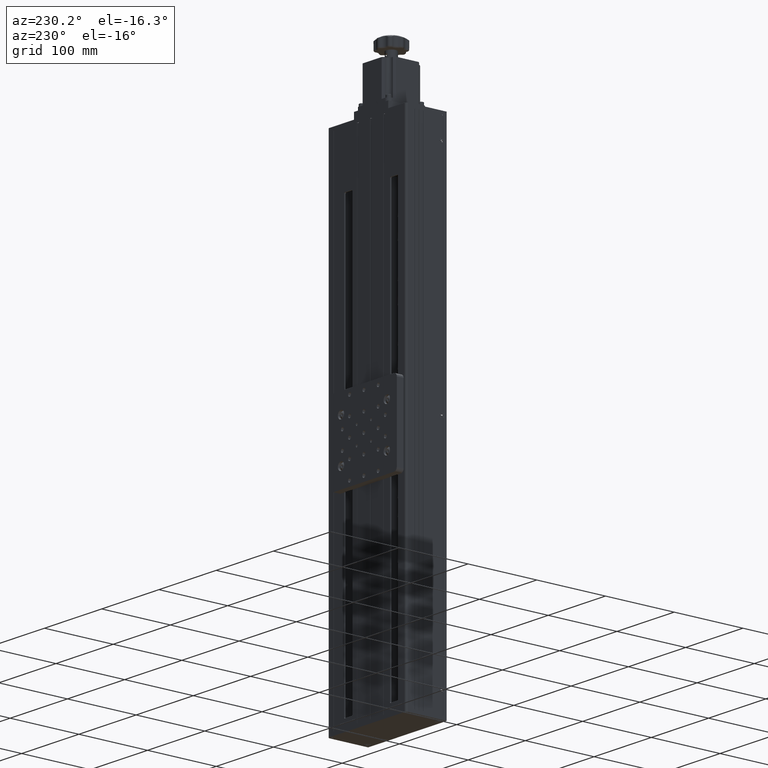
[diagram: clean part render]
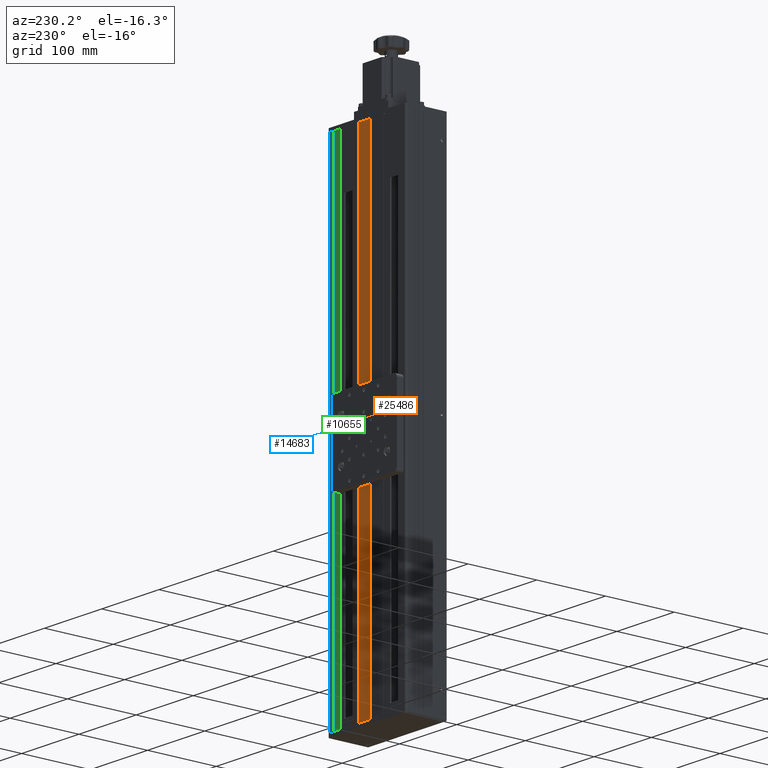
[diagram: same view with three faces highlighted in distinct colors, each labeled with its STEP entity id]
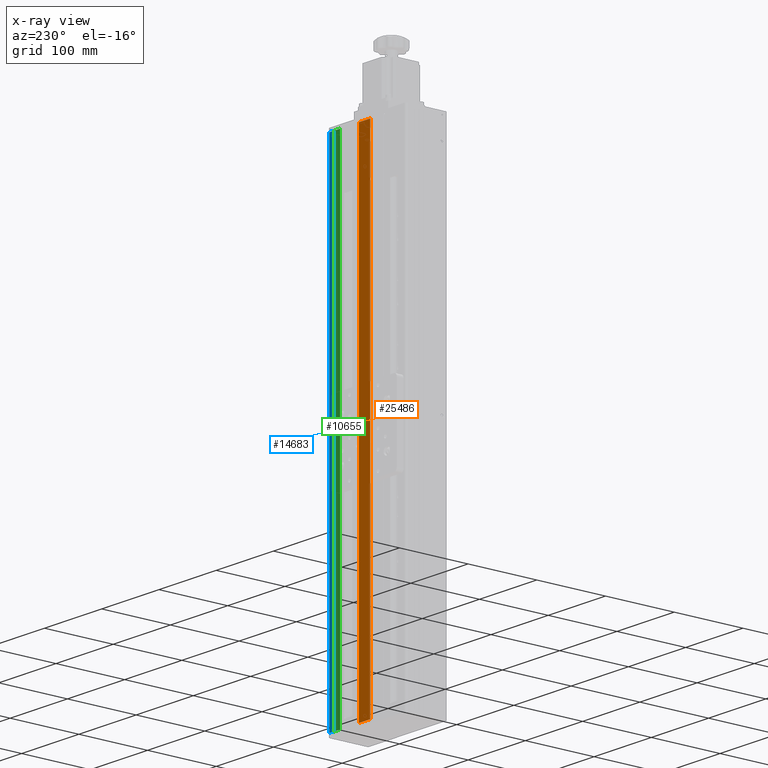
[diagram: x-ray of the same camera — body ghosted, the three highlighted faces saturated]
A machine part, auxiliary view with three faces highlighted in distinct colors.
The next image is the same camera in x-ray (body ghosted, the three faces saturated) — at least one of them is partly hidden behind the body in this view.
Their STEP definitions:

[orange] entity #25486 — the highlighted planar face has unit normal (0, 1, 0).
#202 = VECTOR ( 'NONE', #19134, 1000.000000000000000 ) ;
#3763 = ORIENTED_EDGE ( 'NONE', *, *, #18950, .F. ) ;
#4634 = CARTESIAN_POINT ( 'NONE',  ( 10.88919164396001804, 50.08234937935210951, 350.0000000000000000 ) ) ;
#5395 = EDGE_CURVE ( 'NONE', #21750, #24077, #21935, .T. ) ;
#5703 = DIRECTION ( 'NONE',  ( 1.000000000000000000, 0.000000000000000000, 0.000000000000000000 ) ) ;
#6163 = CARTESIAN_POINT ( 'NONE',  ( -9.110808356039983735, 50.08234937935210951, 350.0000000000000000 ) ) ;
#7167 = VECTOR ( 'NONE', #7190, 1000.000000000000000 ) ;
#7190 = DIRECTION ( 'NONE',  ( -0.000000000000000000, -0.000000000000000000, -1.000000000000000000 ) ) ;
#8976 = CARTESIAN_POINT ( 'NONE',  ( -9.110808356039983735, 50.08234937935210951, -350.0000000000000000 ) ) ;
#9680 = CARTESIAN_POINT ( 'NONE',  ( -9.110808356039983735, 50.08234937935210951, 350.0000000000000000 ) ) ;
#9893 = VECTOR ( 'NONE', #5703, 1000.000000000000000 ) ;
#11097 = CARTESIAN_POINT ( 'NONE',  ( -9.110808356039983735, 50.08234937935210951, -350.0000000000000000 ) ) ;
#11282 = VERTEX_POINT ( 'NONE', #8976 ) ;
#11583 = DIRECTION ( 'NONE',  ( 0.000000000000000000, -0.000000000000000000, 1.000000000000000000 ) ) ;
#15910 = EDGE_LOOP ( 'NONE', ( #3763, #26532, #23049, #16954 ) ) ;
#16022 = CARTESIAN_POINT ( 'NONE',  ( 10.88919164396001804, 50.08234937935210951, -350.0000000000000000 ) ) ;
#16954 = ORIENTED_EDGE ( 'NONE', *, *, #23966, .T. ) ;
#18843 = LINE ( 'NONE', #4634, #202 ) ;
#18950 = EDGE_CURVE ( 'NONE', #11282, #29381, #22367, .T. ) ;
#19134 = DIRECTION ( 'NONE',  ( -0.000000000000000000, -0.000000000000000000, -1.000000000000000000 ) ) ;
#19735 = CARTESIAN_POINT ( 'NONE',  ( 10.88919164396001804, 50.08234937935210951, 350.0000000000000000 ) ) ;
#20207 = FACE_OUTER_BOUND ( 'NONE', #15910, .T. ) ;
#20701 = DIRECTION ( 'NONE',  ( 0.000000000000000000, 1.000000000000000000, 0.000000000000000000 ) ) ;
#21237 = LINE ( 'NONE', #30520, #7167 ) ;
#21750 = VERTEX_POINT ( 'NONE', #9680 ) ;
#21788 = DIRECTION ( 'NONE',  ( 1.000000000000000000, 0.000000000000000000, 0.000000000000000000 ) ) ;
#21935 = LINE ( 'NONE', #29354, #26632 ) ;
#22367 = LINE ( 'NONE', #11097, #9893 ) ;
#23049 = ORIENTED_EDGE ( 'NONE', *, *, #5395, .T. ) ;
#23966 = EDGE_CURVE ( 'NONE', #24077, #29381, #18843, .T. ) ;
#24077 = VERTEX_POINT ( 'NONE', #19735 ) ;
#24794 = EDGE_CURVE ( 'NONE', #21750, #11282, #21237, .T. ) ;
#24942 = AXIS2_PLACEMENT_3D ( 'NONE', #6163, #20701, #11583 ) ;
#25486 = ADVANCED_FACE ( 'NONE', ( #20207 ), #27324, .T. ) ;
#26532 = ORIENTED_EDGE ( 'NONE', *, *, #24794, .F. ) ;
#26632 = VECTOR ( 'NONE', #21788, 1000.000000000000000 ) ;
#27324 = PLANE ( 'NONE',  #24942 ) ;
#29354 = CARTESIAN_POINT ( 'NONE',  ( -9.110808356039983735, 50.08234937935210951, 350.0000000000000000 ) ) ;
#29381 = VERTEX_POINT ( 'NONE', #16022 ) ;
#30520 = CARTESIAN_POINT ( 'NONE',  ( -9.110808356039983735, 50.08234937935210951, 350.0000000000000000 ) ) ;

[blue] entity #14683 — the highlighted planar face has unit normal (0, 1, 0).
#314 = DIRECTION ( 'NONE',  ( 0.000000000000000000, -0.000000000000000000, 1.000000000000000000 ) ) ;
#527 = CARTESIAN_POINT ( 'NONE',  ( 54.88919164396001804, 50.08234937935210951, -350.0000000000000000 ) ) ;
#589 = DIRECTION ( 'NONE',  ( 1.000000000000000000, 0.000000000000000000, 0.000000000000000000 ) ) ;
#614 = DIRECTION ( 'NONE',  ( 0.000000000000000000, 1.000000000000000000, 0.000000000000000000 ) ) ;
#1739 = CARTESIAN_POINT ( 'NONE',  ( 62.38919164396001804, 50.08234937935210951, 350.0000000000000000 ) ) ;
#2216 = EDGE_CURVE ( 'NONE', #11685, #2512, #23847, .T. ) ;
#2258 = EDGE_CURVE ( 'NONE', #23443, #2512, #17360, .T. ) ;
#2512 = VERTEX_POINT ( 'NONE', #16280 ) ;
#3001 = DIRECTION ( 'NONE',  ( 1.000000000000000000, 0.000000000000000000, 0.000000000000000000 ) ) ;
#5032 = EDGE_LOOP ( 'NONE', ( #23171, #16658, #22559, #18840 ) ) ;
#5628 = CARTESIAN_POINT ( 'NONE',  ( 62.38919164396001804, 50.08234937935210951, 350.0000000000000000 ) ) ;
#7248 = VERTEX_POINT ( 'NONE', #25251 ) ;
#11685 = VERTEX_POINT ( 'NONE', #14302 ) ;
#12197 = CARTESIAN_POINT ( 'NONE',  ( 54.88919164396001804, 50.08234937935210951, 350.0000000000000000 ) ) ;
#14302 = CARTESIAN_POINT ( 'NONE',  ( 54.88919164396001804, 50.08234937935210951, -350.0000000000000000 ) ) ;
#14683 = ADVANCED_FACE ( 'NONE', ( #19311 ), #16407, .T. ) ;
#15656 = AXIS2_PLACEMENT_3D ( 'NONE', #25977, #614, #314 ) ;
#16280 = CARTESIAN_POINT ( 'NONE',  ( 62.38919164396001804, 50.08234937935210951, -350.0000000000000000 ) ) ;
#16407 = PLANE ( 'NONE',  #15656 ) ;
#16658 = ORIENTED_EDGE ( 'NONE', *, *, #16853, .F. ) ;
#16761 = VECTOR ( 'NONE', #22623, 1000.000000000000000 ) ;
#16853 = EDGE_CURVE ( 'NONE', #7248, #11685, #29903, .T. ) ;
#17360 = LINE ( 'NONE', #5628, #28793 ) ;
#18840 = ORIENTED_EDGE ( 'NONE', *, *, #2258, .T. ) ;
#19311 = FACE_OUTER_BOUND ( 'NONE', #5032, .T. ) ;
#21755 = LINE ( 'NONE', #12197, #23969 ) ;
#22559 = ORIENTED_EDGE ( 'NONE', *, *, #25609, .T. ) ;
#22623 = DIRECTION ( 'NONE',  ( -0.000000000000000000, -0.000000000000000000, -1.000000000000000000 ) ) ;
#23171 = ORIENTED_EDGE ( 'NONE', *, *, #2216, .F. ) ;
#23443 = VERTEX_POINT ( 'NONE', #1739 ) ;
#23847 = LINE ( 'NONE', #527, #24331 ) ;
#23969 = VECTOR ( 'NONE', #589, 1000.000000000000000 ) ;
#24331 = VECTOR ( 'NONE', #3001, 1000.000000000000000 ) ;
#25251 = CARTESIAN_POINT ( 'NONE',  ( 54.88919164396001804, 50.08234937935210951, 350.0000000000000000 ) ) ;
#25609 = EDGE_CURVE ( 'NONE', #7248, #23443, #21755, .T. ) ;
#25977 = CARTESIAN_POINT ( 'NONE',  ( 54.88919164396001804, 50.08234937935210951, 350.0000000000000000 ) ) ;
#27239 = DIRECTION ( 'NONE',  ( -0.000000000000000000, -0.000000000000000000, -1.000000000000000000 ) ) ;
#27578 = CARTESIAN_POINT ( 'NONE',  ( 54.88919164396001804, 50.08234937935210951, 350.0000000000000000 ) ) ;
#28793 = VECTOR ( 'NONE', #27239, 1000.000000000000000 ) ;
#29903 = LINE ( 'NONE', #27578, #16761 ) ;

[green] entity #10655 — the highlighted planar face has unit normal (0, 1, 0).
#225 = AXIS2_PLACEMENT_3D ( 'NONE', #3772, #1446, #20131 ) ;
#1446 = DIRECTION ( 'NONE',  ( 0.000000000000000000, 1.000000000000000000, 0.000000000000000000 ) ) ;
#1657 = VERTEX_POINT ( 'NONE', #18666 ) ;
#2970 = CARTESIAN_POINT ( 'NONE',  ( 43.88919164396001804, 49.78234937935209814, -350.0000000000000000 ) ) ;
#3772 = CARTESIAN_POINT ( 'NONE',  ( 43.88919164396001804, 49.78234937935209814, 350.0000000000000000 ) ) ;
#5291 = DIRECTION ( 'NONE',  ( 1.000000000000000000, 0.000000000000000000, 0.000000000000000000 ) ) ;
#5782 = PLANE ( 'NONE',  #225 ) ;
#6292 = ORIENTED_EDGE ( 'NONE', *, *, #17346, .T. ) ;
#6555 = CARTESIAN_POINT ( 'NONE',  ( 43.88919164396001804, 49.78234937935209814, 350.0000000000000000 ) ) ;
#7256 = CARTESIAN_POINT ( 'NONE',  ( 43.88919164396001804, 49.78234937935209814, 350.0000000000000000 ) ) ;
#7649 = FACE_OUTER_BOUND ( 'NONE', #30328, .T. ) ;
#8546 = DIRECTION ( 'NONE',  ( 1.000000000000000000, 0.000000000000000000, 0.000000000000000000 ) ) ;
#9129 = VERTEX_POINT ( 'NONE', #20339 ) ;
#9269 = VECTOR ( 'NONE', #8546, 1000.000000000000000 ) ;
#10015 = LINE ( 'NONE', #7256, #12999 ) ;
#10655 = ADVANCED_FACE ( 'NONE', ( #7649 ), #5782, .T. ) ;
#11847 = CARTESIAN_POINT ( 'NONE',  ( 54.88919164396001804, 49.78234937935209814, 350.0000000000000000 ) ) ;
#11886 = VERTEX_POINT ( 'NONE', #26282 ) ;
#12999 = VECTOR ( 'NONE', #14808, 1000.000000000000000 ) ;
#14163 = LINE ( 'NONE', #11847, #22708 ) ;
#14696 = ORIENTED_EDGE ( 'NONE', *, *, #19654, .F. ) ;
#14802 = CARTESIAN_POINT ( 'NONE',  ( 54.88919164396001804, 49.78234937935209814, -350.0000000000000000 ) ) ;
#14808 = DIRECTION ( 'NONE',  ( -0.000000000000000000, -0.000000000000000000, -1.000000000000000000 ) ) ;
#15136 = EDGE_CURVE ( 'NONE', #9129, #11886, #18600, .T. ) ;
#16757 = VERTEX_POINT ( 'NONE', #14802 ) ;
#17323 = LINE ( 'NONE', #2970, #20301 ) ;
#17346 = EDGE_CURVE ( 'NONE', #11886, #16757, #14163, .T. ) ;
#18600 = LINE ( 'NONE', #6555, #9269 ) ;
#18666 = CARTESIAN_POINT ( 'NONE',  ( 43.88919164396001804, 49.78234937935209814, -350.0000000000000000 ) ) ;
#18944 = DIRECTION ( 'NONE',  ( -0.000000000000000000, -0.000000000000000000, -1.000000000000000000 ) ) ;
#19654 = EDGE_CURVE ( 'NONE', #1657, #16757, #17323, .T. ) ;
#20131 = DIRECTION ( 'NONE',  ( 0.000000000000000000, -0.000000000000000000, 1.000000000000000000 ) ) ;
#20301 = VECTOR ( 'NONE', #5291, 1000.000000000000000 ) ;
#20339 = CARTESIAN_POINT ( 'NONE',  ( 43.88919164396001804, 49.78234937935209814, 350.0000000000000000 ) ) ;
#21301 = EDGE_CURVE ( 'NONE', #9129, #1657, #10015, .T. ) ;
#22708 = VECTOR ( 'NONE', #18944, 1000.000000000000000 ) ;
#26282 = CARTESIAN_POINT ( 'NONE',  ( 54.88919164396001804, 49.78234937935209814, 350.0000000000000000 ) ) ;
#28647 = ORIENTED_EDGE ( 'NONE', *, *, #15136, .T. ) ;
#30031 = ORIENTED_EDGE ( 'NONE', *, *, #21301, .F. ) ;
#30328 = EDGE_LOOP ( 'NONE', ( #14696, #30031, #28647, #6292 ) ) ;